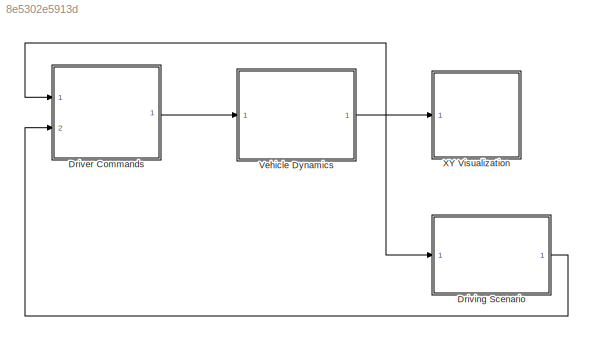
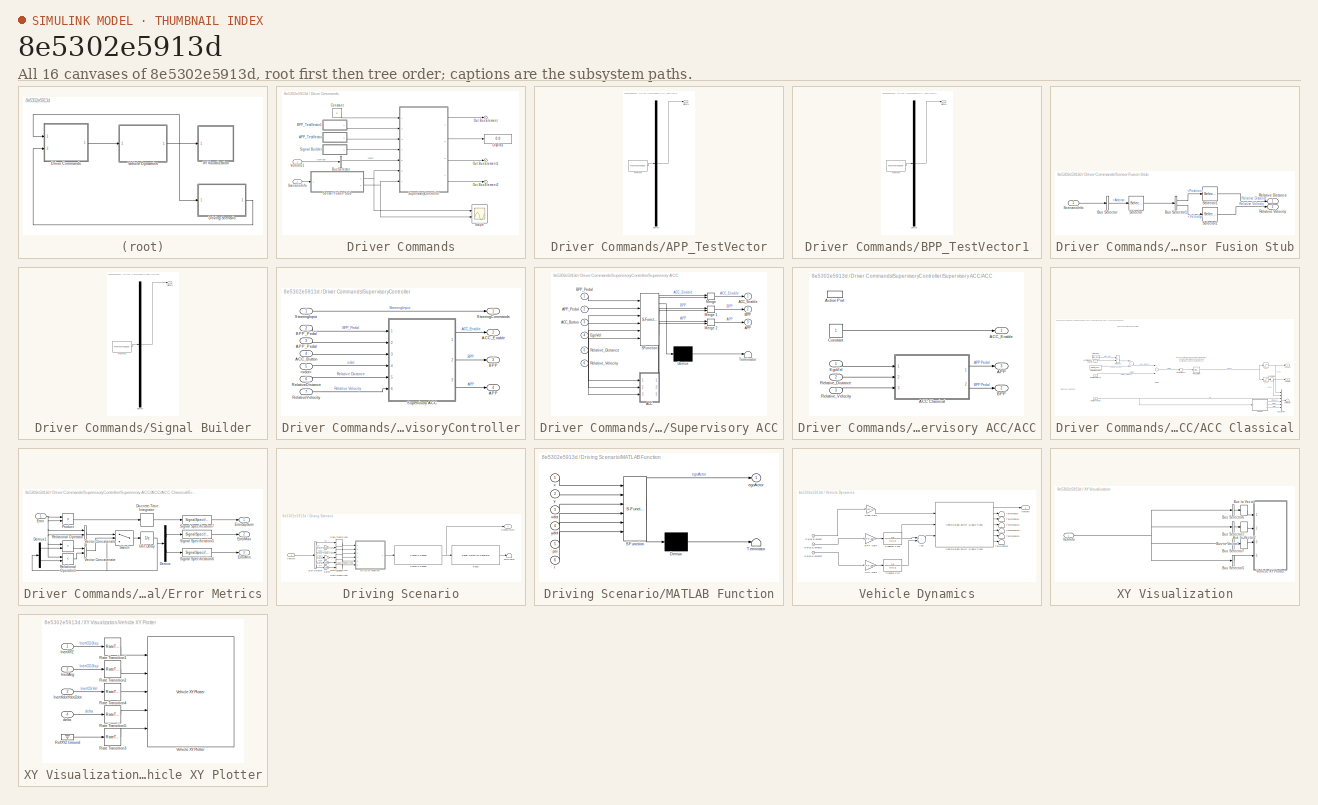
[diagram: thumbnail index - all 16 canvases of the model, root first then tree order]
MODEL slx_8e5302e5913d
KIND model
CONFIG AbsTol = auto
CONFIG EnableMultiTasking = off
CONFIG FixedStep = 0.01
CONFIG InitFcn = initACCParams_pid;
CONFIG MaxStep = auto
CONFIG MinStep = auto
CONFIG PreLoadFcn = Ts1 = -1;\nTs2 = -1;
CONFIG RelTol = 1e-3
CONFIG SampleTimeConstraint = Unconstrained
CONFIG Solver = VariableStepAuto
CONFIG SolverName = VariableStepAuto
CONFIG StartTime = 0.0
CONFIG StopTime = 30
WORKSPACE source: mxarray member
WORKSPACE firstWarning = 1
WORKSPACE originalScenarioChecksum = '3C3E23DDE530CB8BEC76DD6DBB66960A'
BLOCK [SubSystem] Driver Commands
  Ports = [2, 1]
  RequestExecContextInheritance = off
BLOCK [SubSystem] Driver Commands/APP_TestVector
  ClipboardFcn = sigbuilder_block('clipboard');
  CloseFcn = sigbuilder_block('close');
  ContinueFcn = sigbuilder_block('continue');
  CopyFcn = sigbuilder_block('copy');
  DeleteFcn = sigbuilder_block('delete');
  LoadFcn = sigbuilder_block('load');
  MaskHideContents = on
  ModelCloseFcn = sigbuilder_block('modelClose');
  NameChangeFcn = sigbuilder_block('namechange');
  OpenFcn = sigbuilder_block('open',[609 515.25 550.5 237.75 ]);
  PauseFcn = sigbuilder_block('pause');
  Ports = [0, 1]
  PreSaveFcn = sigbuilder_block('preSave');
  RequestExecContextInheritance = off
  StartFcn = sigbuilder_block('start');
  StopFcn = sigbuilder_block('stop');
  Tag = STV Subsys
BLOCK [Demux] Driver Commands/APP_TestVector/Demux
  Outputs = 1
  Ports = [1, 1]
  Tag = STV Demux
BLOCK [FromWorkspace] Driver Commands/APP_TestVector/FromWs
  SampleTime = 0
  Tag = STV FromWs
  VariableName = tuvar
  ZeroCross = on
BLOCK [Outport] Driver Commands/APP_TestVector/Signal 1
  IconDisplay = Port number
  Tag = STV Outport
BLOCK [SubSystem] Driver Commands/BPP_TestVector1
  ClipboardFcn = sigbuilder_block('clipboard');
  CloseFcn = sigbuilder_block('close');
  ContinueFcn = sigbuilder_block('continue');
  CopyFcn = sigbuilder_block('copy');
  DeleteFcn = sigbuilder_block('delete');
  LoadFcn = sigbuilder_block('load');
  MaskHideContents = on
  ModelCloseFcn = sigbuilder_block('modelClose');
  NameChangeFcn = sigbuilder_block('namechange');
  OpenFcn = sigbuilder_block('open',[325.5 304.5 550.5 278.25 ]);
  PauseFcn = sigbuilder_block('pause');
  Ports = [0, 1]
  PreSaveFcn = sigbuilder_block('preSave');
  RequestExecContextInheritance = off
  StartFcn = sigbuilder_block('start');
  StopFcn = sigbuilder_block('stop');
  Tag = STV Subsys
BLOCK [Demux] Driver Commands/BPP_TestVector1/Demux
  Outputs = 1
  Ports = [1, 1]
  Tag = STV Demux
BLOCK [FromWorkspace] Driver Commands/BPP_TestVector1/FromWs
  SampleTime = 0
  Tag = STV FromWs
  VariableName = tuvar
  ZeroCross = on
BLOCK [Outport] Driver Commands/BPP_TestVector1/Signal 1
  IconDisplay = Port number
  Tag = STV Outport
BLOCK [BusSelector] Driver Commands/Bus Selector
  OutputAsBus = off
  OutputSignals = BdyFrm.Cg.Vel.xdot
  Ports = [1, 1]
BLOCK [Constant] Driver Commands/Constant
  SampleTime = 0.01
  Value = 0
BLOCK [Display] Driver Commands/Display
  Decimation = 1
  Ports = [1]
BLOCK [Outport] Driver Commands/Out Bus Element
  IconDisplay = Port number
BLOCK [Outport] Driver Commands/Out Bus Element1
  IconDisplay = Port number
BLOCK [Outport] Driver Commands/Out Bus Element2
  IconDisplay = Port number
BLOCK [Inport] Driver Commands/ScenarioInfo
  IconDisplay = Port number
  Port = 2
BLOCK [Scope] Driver Commands/Scope
  Floating = off
  NumInputPorts = 2
  Ports = [2]
  ScopeSpecificationString = Simulink.scopes.TimeScopeBlockCfg('CurrentConfiguration', extmgr.ConfigurationSet(extmgr.Configuration('Core','General UI',true),extmgr.Configuration('Core','Source UI',true),extmgr.Configuration('Sources','WiredSimulink',true),extmgr.Configuration('Visuals','Time Domain',true,'SerializedDisplays',{struct('MinYLimReal','-7.50301','MaxYLimReal','116.90862','YLabelReal','','MinYLimMag','0.00000','Ma...<+2013ch>
BLOCK [SubSystem] Driver Commands/Sensor Fusion Stub
  Ports = [1, 2]
  RequestExecContextInheritance = off
BLOCK [BusSelector] Driver Commands/Sensor Fusion Stub/Bus Selector
  OutputAsBus = off
  OutputSignals = Actors
  Ports = [1, 1]
BLOCK [BusSelector] Driver Commands/Sensor Fusion Stub/Bus Selector1
  OutputAsBus = off
  OutputSignals = Position,Velocity
  Ports = [1, 2]
BLOCK [Outport] Driver Commands/Sensor Fusion Stub/Relative Distance
  IconDisplay = Port number
BLOCK [Outport] Driver Commands/Sensor Fusion Stub/Relative Velocity
  IconDisplay = Port number
  Port = 2
BLOCK [Inport] Driver Commands/Sensor Fusion Stub/ScenarioInfo
  IconDisplay = Port number
BLOCK [Selector] Driver Commands/Sensor Fusion Stub/Selector
  IndexOptions = Index vector (dialog)
  Indices = 3
  InputPortWidth = 3
  OutputSizes = 1
  Ports = [1, 1]
BLOCK [Selector] Driver Commands/Sensor Fusion Stub/Selector1
  IndexOptions = Index vector (dialog)
  Indices = 1
  InputPortWidth = 3
  OutputSizes = 1
  Ports = [1, 1]
BLOCK [Selector] Driver Commands/Sensor Fusion Stub/Selector2
  IndexOptions = Index vector (dialog)
  Indices = 1
  InputPortWidth = 3
  OutputSizes = 1
  Ports = [1, 1]
BLOCK [SubSystem] Driver Commands/Signal Builder
  ClipboardFcn = sigbuilder_block('clipboard');
  CloseFcn = sigbuilder_block('close');
  ContinueFcn = sigbuilder_block('continue');
  CopyFcn = sigbuilder_block('copy');
  DeleteFcn = sigbuilder_block('delete');
  LoadFcn = sigbuilder_block('load');
  MaskHideContents = on
  ModelCloseFcn = sigbuilder_block('modelClose');
  NameChangeFcn = sigbuilder_block('namechange');
  OpenFcn = sigbuilder_block('open',[401.25 280.5 550.5 278.25 ]);
  PauseFcn = sigbuilder_block('pause');
  Ports = [0, 1]
  PreSaveFcn = sigbuilder_block('preSave');
  RequestExecContextInheritance = off
  StartFcn = sigbuilder_block('start');
  StopFcn = sigbuilder_block('stop');
  Tag = STV Subsys
BLOCK [Demux] Driver Commands/Signal Builder/Demux
  Outputs = 1
  Ports = [1, 1]
  Tag = STV Demux
BLOCK [FromWorkspace] Driver Commands/Signal Builder/FromWs
  SampleTime = 0
  Tag = STV FromWs
  VariableName = tuvar
  ZeroCross = on
BLOCK [Outport] Driver Commands/Signal Builder/Signal 1
  IconDisplay = Port number
  Tag = STV Outport
BLOCK [SubSystem] Driver Commands/SupervisoryController
  Ports = [7, 4]
  RequestExecContextInheritance = off
BLOCK [Inport] Driver Commands/SupervisoryController/<xdot>
  IconDisplay = Port number
  OutDataTypeStr = double
  Port = 5
  PortDimensions = 1
  SampleTime = Ts1
  SamplingMode = Sample based
  SignalType = real
BLOCK [Inport] Driver Commands/SupervisoryController/ACC_Button
  IconDisplay = Port number
  OutDataTypeStr = double
  Port = 4
  PortDimensions = 1
  SampleTime = Ts1
  SamplingMode = Sample based
  SignalType = real
BLOCK [Outport] Driver Commands/SupervisoryController/ACC_Enable
  IconDisplay = Port number
  OutDataTypeStr = double
  Port = 2
  PortDimensions = 1
  SamplingMode = Sample based
  SignalType = real
BLOCK [Outport] Driver Commands/SupervisoryController/APP
  IconDisplay = Port number
  OutDataTypeStr = double
  Port = 4
  PortDimensions = 1
  SamplingMode = Sample based
  SignalType = real
BLOCK [Inport] Driver Commands/SupervisoryController/APP_Pedal
  IconDisplay = Port number
  OutDataTypeStr = double
  Port = 3
  PortDimensions = 1
  SampleTime = Ts1
  SamplingMode = Sample based
  SignalType = real
BLOCK [Outport] Driver Commands/SupervisoryController/BPP
  IconDisplay = Port number
  OutDataTypeStr = double
  Port = 3
  PortDimensions = 1
  SamplingMode = Sample based
  SignalType = real
BLOCK [Inport] Driver Commands/SupervisoryController/BPP_Pedal
  IconDisplay = Port number
  OutDataTypeStr = double
  Port = 2
  PortDimensions = 1
  SampleTime = Ts1
  SamplingMode = Sample based
  SignalType = real
BLOCK [Inport] Driver Commands/SupervisoryController/RelativeDistance
  IconDisplay = Port number
  OutDataTypeStr = double
  Port = 6
  PortDimensions = [1 1]
  SampleTime = Ts2
  SamplingMode = Sample based
  SignalType = real
BLOCK [Inport] Driver Commands/SupervisoryController/RelativeVelocity
  IconDisplay = Port number
  OutDataTypeStr = double
  Port = 7
  PortDimensions = [1 1]
  SampleTime = Ts2
  SamplingMode = Sample based
  SignalType = real
BLOCK [Outport] Driver Commands/SupervisoryController/SteeringCommands
  IconDisplay = Port number
  OutDataTypeStr = double
  PortDimensions = 1
  SamplingMode = Sample based
  SignalType = real
BLOCK [Inport] Driver Commands/SupervisoryController/SteeringInput 
  IconDisplay = Port number
  OutDataTypeStr = double
  PortDimensions = 1
  SampleTime = Ts1
  SamplingMode = Sample based
  SignalType = real
BLOCK [SubSystem] Driver Commands/SupervisoryController/Supervisory ACC
  BlockKeywords = __PRM__SERIALIZED__DATA__:Stateflow Chart,Stateflow Diagram
  ErrorFcn = Stateflow.Translate.translate
  PermitHierarchicalResolution = ExplicitOnly
  Ports = [6, 3]
  RequestExecContextInheritance = off
  SFBlockType = Chart
BLOCK [Demux] Driver Commands/SupervisoryController/Supervisory ACC/ Demux 
  Outputs = 1
  Ports = [1, 1]
BLOCK [Merge] Driver Commands/SupervisoryController/Supervisory ACC/ Merge 
  Ports = [2, 1]
BLOCK [Merge] Driver Commands/SupervisoryController/Supervisory ACC/ Merge 1
  Ports = [2, 1]
BLOCK [Merge] Driver Commands/SupervisoryController/Supervisory ACC/ Merge 2
  Ports = [2, 1]
BLOCK [S-Function] Driver Commands/SupervisoryController/Supervisory ACC/ SFunction 
  EnableBusSupport = on
  FunctionName = sf_sfun
  PortCounts = [6 4]
  Ports = [6, 4]
  SFcnIsStateOwnerBlock = off
  SFunctionDeploymentMode = off
  Tag = Stateflow S-Function 3
BLOCK [Terminator] Driver Commands/SupervisoryController/Supervisory ACC/ Terminator 
BLOCK [SubSystem] Driver Commands/SupervisoryController/Supervisory ACC/ACC
  Ports = [3, 3, 0, 0, 0, 0, 0, 1]
  PreDeleteFcn = Stateflow.SLINSF.SimulinkMan.removePreDeleteFcn
  RequestExecContextInheritance = off
  UndoDeleteFcn = Stateflow.SLINSF.SimulinkMan.restorePreDeleteFcn
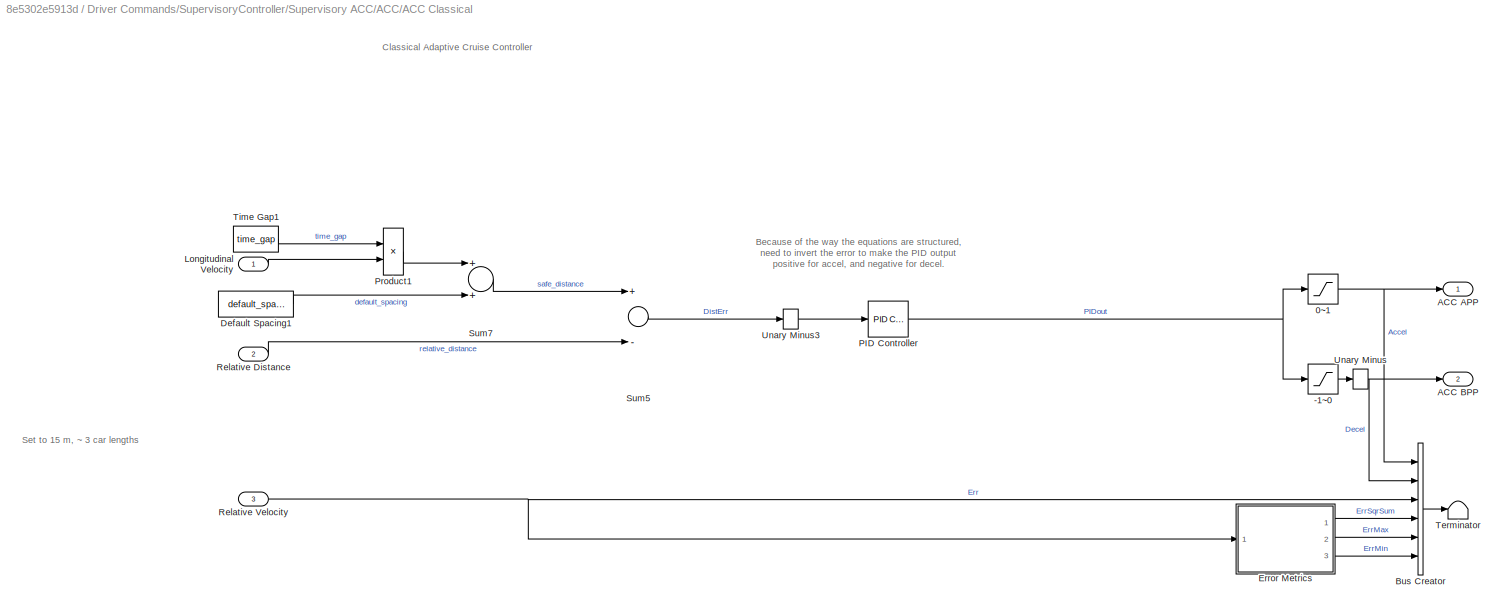
BLOCK [SubSystem] Driver Commands/SupervisoryController/Supervisory ACC/ACC/ACC Classical
  Ports = [3, 2]
  RTWFileNameOpts = Use function name
  RTWSystemCode = Reusable function
  RequestExecContextInheritance = off
  VariantControl = controller_type == 1
BLOCK [Saturate] Driver Commands/SupervisoryController/Supervisory ACC/ACC/ACC Classical/-1~0
  InputPortMap = u0
  LowerLimit = -1
  Ports = [1, 1]
  UpperLimit = 0
  ZeroCross = off
BLOCK [Saturate] Driver Commands/SupervisoryController/Supervisory ACC/ACC/ACC Classical/0~1
  InputPortMap = u0
  LowerLimit = 0
  Ports = [1, 1]
  UpperLimit = 1
  ZeroCross = off
BLOCK [Outport] Driver Commands/SupervisoryController/Supervisory ACC/ACC/ACC Classical/ACC APP
  IconDisplay = Port number
  InitialOutput = 0
  Unit = one
  VectorParamsAs1DForOutWhenUnconnected = off
BLOCK [Outport] Driver Commands/SupervisoryController/Supervisory ACC/ACC/ACC Classical/ACC BPP
  IconDisplay = Port number
  InitialOutput = 0
  Port = 2
  Unit = one
  VectorParamsAs1DForOutWhenUnconnected = off
BLOCK [BusCreator] Driver Commands/SupervisoryController/Supervisory ACC/ACC/ACC Classical/Bus Creator
  DisplayOption = bar
  InheritFromInputs = on
  Inputs = 6
  Ports = [6, 1]
BLOCK [Constant] Driver Commands/SupervisoryController/Supervisory ACC/ACC/ACC Classical/Default Spacing1
  SampleTime = -1
  Value = default_spacing
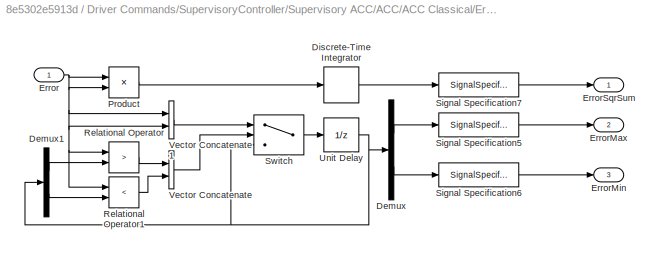
BLOCK [SubSystem] Driver Commands/SupervisoryController/Supervisory ACC/ACC/ACC Classical/Error Metrics
  Ports = [1, 3]
  RequestExecContextInheritance = off
BLOCK [Demux] Driver Commands/SupervisoryController/Supervisory ACC/ACC/ACC Classical/Error Metrics/Demux
  DisplayOption = bar
  Outputs = 2
  Ports = [1, 2]
BLOCK [Demux] Driver Commands/SupervisoryController/Supervisory ACC/ACC/ACC Classical/Error Metrics/Demux1
  DisplayOption = bar
  Outputs = 2
  Ports = [1, 2]
BLOCK [DiscreteIntegrator] Driver Commands/SupervisoryController/Supervisory ACC/ACC/ACC Classical/Error Metrics/Discrete-Time Integrator
  ICPrevOutput = DiscIntNeverNeededParam
  ICPrevScaledInput = DiscIntNeverNeededParam
  InitialConditionSetting = Auto
  Ports = [1, 1]
  SampleTime = -1
BLOCK [Inport] Driver Commands/SupervisoryController/Supervisory ACC/ACC/ACC Classical/Error Metrics/Error
  IconDisplay = Port number
BLOCK [Outport] Driver Commands/SupervisoryController/Supervisory ACC/ACC/ACC Classical/Error Metrics/ErrorMax
  IconDisplay = Port number
  Port = 2
  VectorParamsAs1DForOutWhenUnconnected = off
BLOCK [Outport] Driver Commands/SupervisoryController/Supervisory ACC/ACC/ACC Classical/Error Metrics/ErrorMin
  IconDisplay = Port number
  Port = 3
  VectorParamsAs1DForOutWhenUnconnected = off
BLOCK [Outport] Driver Commands/SupervisoryController/Supervisory ACC/ACC/ACC Classical/Error Metrics/ErrorSqrSum
  IconDisplay = Port number
  VectorParamsAs1DForOutWhenUnconnected = off
BLOCK [Product] Driver Commands/SupervisoryController/Supervisory ACC/ACC/ACC Classical/Error Metrics/Product
  InputSameDT = off
  OutDataTypeStr = Inherit: Inherit via internal rule
  Ports = [2, 1]
  RndMeth = Floor
  SaturateOnIntegerOverflow = off
BLOCK [RelationalOperator] Driver Commands/SupervisoryController/Supervisory ACC/ACC/ACC Classical/Error Metrics/Relational Operator
  InputSameDT = off
  Operator = >
  OutDataTypeStr = boolean
  Ports = [2, 1]
  RndMeth = Simplest
  ZeroCross = off
BLOCK [RelationalOperator] Driver Commands/SupervisoryController/Supervisory ACC/ACC/ACC Classical/Error Metrics/Relational Operator1
  InputSameDT = off
  Operator = <
  OutDataTypeStr = boolean
  Ports = [2, 1]
  RndMeth = Simplest
  ZeroCross = off
BLOCK [SignalSpecification] Driver Commands/SupervisoryController/Supervisory ACC/ACC/ACC Classical/Error Metrics/Signal Specification5
  Unit = m/s
BLOCK [SignalSpecification] Driver Commands/SupervisoryController/Supervisory ACC/ACC/ACC Classical/Error Metrics/Signal Specification6
  Unit = m/s
BLOCK [SignalSpecification] Driver Commands/SupervisoryController/Supervisory ACC/ACC/ACC Classical/Error Metrics/Signal Specification7
  Unit = m^2/s^2
BLOCK [Switch] Driver Commands/SupervisoryController/Supervisory ACC/ACC/ACC Classical/Error Metrics/Switch
  Criteria = u2 > Threshold
  InputSameDT = off
  SaturateOnIntegerOverflow = off
BLOCK [UnitDelay] Driver Commands/SupervisoryController/Supervisory ACC/ACC/ACC Classical/Error Metrics/Unit Delay
  HasFrameUpgradeWarning = on
  InitialCondition = [0,0]
  SampleTime = -1
BLOCK [Concatenate] Driver Commands/SupervisoryController/Supervisory ACC/ACC/ACC Classical/Error Metrics/Vector Concatenate
  Ports = [2, 1]
BLOCK [Concatenate] Driver Commands/SupervisoryController/Supervisory ACC/ACC/ACC Classical/Error Metrics/Vector Concatenate1
  Ports = [2, 1]
BLOCK [Inport] Driver Commands/SupervisoryController/Supervisory ACC/ACC/ACC Classical/Longitudinal Velocity
  IconDisplay = Port number
BLOCK [Reference] Driver Commands/SupervisoryController/Supervisory ACC/ACC/ACC Classical/PID Controller  REF=simulink/Continuous/PID Controller
  Ports = [1, 1]
  SourceBlock = simulink/Continuous/PID Controller
  SourceProductBaseCode = SL
  SourceProductName = Simulink
  SourceType = PID 1dof
BLOCK [Product] Driver Commands/SupervisoryController/Supervisory ACC/ACC/ACC Classical/Product1
  InputSameDT = off
  OutDataTypeStr = Inherit: Inherit via internal rule
  Ports = [2, 1]
  RndMeth = Floor
  SaturateOnIntegerOverflow = off
BLOCK [Inport] Driver Commands/SupervisoryController/Supervisory ACC/ACC/ACC Classical/Relative Distance
  IconDisplay = Port number
  Port = 2
BLOCK [Inport] Driver Commands/SupervisoryController/Supervisory ACC/ACC/ACC Classical/Relative Velocity
  IconDisplay = Port number
  Port = 3
BLOCK [Sum] Driver Commands/SupervisoryController/Supervisory ACC/ACC/ACC Classical/Sum5
  InputSameDT = off
  Inputs = +-
  OutDataTypeStr = Inherit: Inherit via internal rule
  Ports = [2, 1]
  SaturateOnIntegerOverflow = off
BLOCK [Sum] Driver Commands/SupervisoryController/Supervisory ACC/ACC/ACC Classical/Sum7
  InputSameDT = off
  OutDataTypeStr = Inherit: Inherit via internal rule
  Ports = [2, 1]
  SaturateOnIntegerOverflow = off
BLOCK [Terminator] Driver Commands/SupervisoryController/Supervisory ACC/ACC/ACC Classical/Terminator
BLOCK [Constant] Driver Commands/SupervisoryController/Supervisory ACC/ACC/ACC Classical/Time Gap1
  SampleTime = -1
  Value = time_gap
BLOCK [UnaryMinus] Driver Commands/SupervisoryController/Supervisory ACC/ACC/ACC Classical/Unary Minus
BLOCK [UnaryMinus] Driver Commands/SupervisoryController/Supervisory ACC/ACC/ACC Classical/Unary Minus3
BLOCK [Outport] Driver Commands/SupervisoryController/Supervisory ACC/ACC/ACC_Enable
  IconDisplay = Port number
BLOCK [Outport] Driver Commands/SupervisoryController/Supervisory ACC/ACC/APP
  IconDisplay = Port number
  Port = 3
BLOCK [ActionPort] Driver Commands/SupervisoryController/Supervisory ACC/ACC/Action Port
  CopyFcn = Stateflow.SLINSF.SimulinkMan.removeBlockPreDeleteFcn
  PreDeleteFcn = Stateflow.SLINSF.SimulinkMan.unsafePredeleteFcn
BLOCK [Outport] Driver Commands/SupervisoryController/Supervisory ACC/ACC/BPP
  IconDisplay = Port number
  Port = 2
BLOCK [Constant] Driver Commands/SupervisoryController/Supervisory ACC/ACC/Constant
  SampleTime = -1
BLOCK [Inport] Driver Commands/SupervisoryController/Supervisory ACC/ACC/EgoVel
  IconDisplay = Port number
BLOCK [Inport] Driver Commands/SupervisoryController/Supervisory ACC/ACC/Relative_Distance
  IconDisplay = Port number
  Port = 2
BLOCK [Inport] Driver Commands/SupervisoryController/Supervisory ACC/ACC/Relative_Velocity
  IconDisplay = Port number
  Port = 3
BLOCK [Inport] Driver Commands/SupervisoryController/Supervisory ACC/ACC_Button
  IconDisplay = Port number
  Port = 3
BLOCK [Outport] Driver Commands/SupervisoryController/Supervisory ACC/ACC_Enable
  IconDisplay = Port number
BLOCK [Outport] Driver Commands/SupervisoryController/Supervisory ACC/APP
  IconDisplay = Port number
  Port = 3
BLOCK [Inport] Driver Commands/SupervisoryController/Supervisory ACC/APP_Pedal
  IconDisplay = Port number
  Port = 2
BLOCK [Outport] Driver Commands/SupervisoryController/Supervisory ACC/BPP
  IconDisplay = Port number
  Port = 2
BLOCK [Inport] Driver Commands/SupervisoryController/Supervisory ACC/BPP_Pedal
  IconDisplay = Port number
BLOCK [Inport] Driver Commands/SupervisoryController/Supervisory ACC/EgoVel
  IconDisplay = Port number
  Port = 4
BLOCK [Inport] Driver Commands/SupervisoryController/Supervisory ACC/Relative_Distance
  IconDisplay = Port number
  Port = 5
BLOCK [Inport] Driver Commands/SupervisoryController/Supervisory ACC/Relative_Velocity
  IconDisplay = Port number
  Port = 6
BLOCK [Inport] Driver Commands/VehInfo1
  IconDisplay = Port number
BLOCK [SubSystem] Driving Scenario
  Ports = [1, 1]
  RequestExecContextInheritance = off
BLOCK [BusSelector] Driving Scenario/Bus Selector
  OutputAsBus = off
  OutputSignals = InertFrm.Cg.Disp.X,InertFrm.Cg.Disp.Y,InertFrm.Cg.Vel.Xdot,InertFrm.Cg.Vel.Ydot,InertFrm.Cg.Ang.psi,BdyFrm.Cg.AngVel.r
  Ports = [1, 6]
BLOCK [Gain] Driving Scenario/Gain
  Gain = -1
  OutDataTypeStr = Inherit: Inherit via internal rule
  ParamDataTypeStr = Inherit: Inherit via internal rule
  SaturateOnIntegerOverflow = off
BLOCK [Gain] Driving Scenario/Gain1
  Gain = -1
  OutDataTypeStr = Inherit: Inherit via internal rule
  ParamDataTypeStr = Inherit: Inherit via internal rule
  SaturateOnIntegerOverflow = off
BLOCK [Gain] Driving Scenario/Gain2
  Gain = -180/pi
  OutDataTypeStr = Inherit: Inherit via internal rule
  ParamDataTypeStr = Inherit: Inherit via internal rule
  SaturateOnIntegerOverflow = off
BLOCK [Gain] Driving Scenario/Gain3
  Gain = -180/pi
  OutDataTypeStr = Inherit: Inherit via internal rule
  ParamDataTypeStr = Inherit: Inherit via internal rule
  SaturateOnIntegerOverflow = off
BLOCK [SubSystem] Driving Scenario/MATLAB Function
  ErrorFcn = Stateflow.Translate.translate
  PermitHierarchicalResolution = ExplicitOnly
  Ports = [6, 1]
  RequestExecContextInheritance = off
  SFBlockType = MATLAB Function
  TreatAsAtomicUnit = on
BLOCK [Demux] Driving Scenario/MATLAB Function/ Demux 
  Outputs = 1
  Ports = [1, 1]
BLOCK [S-Function] Driving Scenario/MATLAB Function/ SFunction 
  EnableBusSupport = on
  FunctionName = sf_sfun
  PortCounts = [6 2]
  Ports = [6, 2]
  SFcnIsStateOwnerBlock = off
  SFunctionDeploymentMode = off
  Tag = Stateflow S-Function 2
BLOCK [Terminator] Driving Scenario/MATLAB Function/ Terminator 
BLOCK [Outport] Driving Scenario/MATLAB Function/egoActor
  IconDisplay = Port number
BLOCK [Inport] Driving Scenario/MATLAB Function/psi
  IconDisplay = Port number
  Port = 5
BLOCK [Inport] Driving Scenario/MATLAB Function/r
  IconDisplay = Port number
  Port = 6
BLOCK [Inport] Driving Scenario/MATLAB Function/x
  IconDisplay = Port number
BLOCK [Inport] Driving Scenario/MATLAB Function/xdot
  IconDisplay = Port number
  Port = 3
BLOCK [Inport] Driving Scenario/MATLAB Function/y
  IconDisplay = Port number
  Port = 2
BLOCK [Inport] Driving Scenario/MATLAB Function/ydot
  IconDisplay = Port number
  Port = 4
BLOCK [Reference] Driving Scenario/Radar  REF=drivingscenarioandsensors/Radar Detection Generator
  Ports = [1, 1]
  SourceBlock = drivingscenarioandsensors/Radar Detection Generator
  SourceProductBaseCode = DR
  SourceProductName = Automated Driving Toolbox
  SourceType = radarDetectionGenerator
BLOCK [RateTransition] Driving Scenario/Rate Transition1
  OutPortSampleTime = 0.1
BLOCK [RateTransition] Driving Scenario/Rate Transition2
  OutPortSampleTime = 0.1
BLOCK [RateTransition] Driving Scenario/Rate Transition3
  OutPortSampleTime = 0.1
BLOCK [RateTransition] Driving Scenario/Rate Transition4
  OutPortSampleTime = 0.1
BLOCK [RateTransition] Driving Scenario/Rate Transition5
  OutPortSampleTime = 0.1
BLOCK [RateTransition] Driving Scenario/Rate Transition6
  OutPortSampleTime = 0.1
BLOCK [Reference] Driving Scenario/Scenario Reader  REF=drivingscenarioandsensors/Scenario Reader
  Ports = [1, 1]
  SourceBlock = drivingscenarioandsensors/Scenario Reader
  SourceProductBaseCode = DR
  SourceProductName = Automated Driving Toolbox
  SourceType = driving.scenario.internal.ScenarioReader
BLOCK [Outport] Driving Scenario/ScenarioInfo
  IconDisplay = Port number
BLOCK [Terminator] Driving Scenario/Terminator
BLOCK [Inport] Driving Scenario/VehInfo
  IconDisplay = Port number
BLOCK [SubSystem] Vehicle Dynamics
  Ports = [1, 1]
  RequestExecContextInheritance = off
BLOCK [Gain] Vehicle Dynamics/APP Gain
  Gain = APP_gain
  OutDataTypeStr = Inherit: Inherit via internal rule
  ParamDataTypeStr = Inherit: Inherit via internal rule
  SaturateOnIntegerOverflow = off
BLOCK [Sum] Vehicle Dynamics/Add
  InputSameDT = off
  OutDataTypeStr = Inherit: Inherit via internal rule
  Ports = [2, 1]
  SaturateOnIntegerOverflow = off
BLOCK [Gain] Vehicle Dynamics/BPP Gain
  Gain = BPP_gain
  OutDataTypeStr = Inherit: Inherit via internal rule
  ParamDataTypeStr = Inherit: Inherit via internal rule
  SaturateOnIntegerOverflow = off
BLOCK [Inport] Vehicle Dynamics/In Bus Element
  IconDisplay = Port number
BLOCK [Inport] Vehicle Dynamics/In Bus Element1
  IconDisplay = Port number
BLOCK [Inport] Vehicle Dynamics/In Bus Element2
  IconDisplay = Port number
BLOCK [Gain] Vehicle Dynamics/Steer Gain
  Gain = steer_gain
  OutDataTypeStr = Inherit: Inherit via internal rule
  ParamDataTypeStr = Inherit: Inherit via internal rule
  SaturateOnIntegerOverflow = off
BLOCK [Terminator] Vehicle Dynamics/Terminator
BLOCK [Terminator] Vehicle Dynamics/Terminator1
BLOCK [Terminator] Vehicle Dynamics/Terminator2
BLOCK [Terminator] Vehicle Dynamics/Terminator3
BLOCK [Terminator] Vehicle Dynamics/Terminator4
BLOCK [Terminator] Vehicle Dynamics/Terminator5
BLOCK [TransferFcn] Vehicle Dynamics/Transfer Fcn
  Denominator = [0.5 1]
BLOCK [TransferFcn] Vehicle Dynamics/Transfer Fcn1
  Denominator = [0.5 1]
BLOCK [Outport] Vehicle Dynamics/VehInfo
  IconDisplay = Port number
BLOCK [Reference] Vehicle Dynamics/Vehicle Body 3DOF Single Track  REF=autolibshared/Vehicle Body 3DOF Single Track
  Ports = [3, 7]
  SourceBlock = autolibshared/Vehicle Body 3DOF Single Track
  SourceProductBaseCode = PW
  SourceProductName = Powertrain Blockset
  SourceType = Vehicle Body 3DOF Lateral
BLOCK [SubSystem] XY Visualization
  Ports = [1]
  RequestExecContextInheritance = off
BLOCK [BusSelector] XY Visualization/Bus Selector1
  OutputAsBus = on
  OutputSignals = InertFrm.Cg.Ang.phi,InertFrm.Cg.Ang.theta,InertFrm.Cg.Ang.psi
  Ports = [1, 1]
BLOCK [BusSelector] XY Visualization/Bus Selector5
  OutputAsBus = on
  OutputSignals = BdyFrm.FrntAxl.Steer.WhlAngFL,BdyFrm.FrntAxl.Steer.WhlAngFR,BdyFrm.RearAxl.Steer.WhlAngRL,BdyFrm.RearAxl.Steer.WhlAngRR
  Ports = [1, 1]
BLOCK [BusSelector] XY Visualization/Bus Selector6
  OutputAsBus = on
  OutputSignals = InertFrm.Geom.Disp.X,InertFrm.Geom.Disp.Y,InertFrm.Geom.Disp.Z
  Ports = [1, 1]
BLOCK [BusSelector] XY Visualization/Bus Selector7
  OutputAsBus = on
  OutputSignals = InertFrm.Geom.Vel.Xdot,InertFrm.Geom.Vel.Ydot,InertFrm.Geom.Vel.Zdot
  Ports = [1, 1]
BLOCK [BusToVector] XY Visualization/Bus to Vector
BLOCK [BusToVector] XY Visualization/Bus to Vector1
BLOCK [BusToVector] XY Visualization/Bus to Vector2
BLOCK [Inport] XY Visualization/VehInfo
  IconDisplay = Port number
BLOCK [SubSystem] XY Visualization/Vehicle XY Plotter
  Ports = [4]
  RequestExecContextInheritance = off
BLOCK [Inport] XY Visualization/Vehicle XY Plotter/InertAng
  IconDisplay = Port number
  Port = 2
BLOCK [Inport] XY Visualization/Vehicle XY Plotter/InertXYZ
  IconDisplay = Port number
BLOCK [Inport] XY Visualization/Vehicle XY Plotter/InertXdotYdotZdot
  IconDisplay = Port number
  Port = 3
BLOCK [RateTransition] XY Visualization/Vehicle XY Plotter/Rate Transition1
  Deterministic = off
  OutPortSampleTime = pltDT
BLOCK [RateTransition] XY Visualization/Vehicle XY Plotter/Rate Transition2
  Deterministic = off
  OutPortSampleTime = pltDT
BLOCK [RateTransition] XY Visualization/Vehicle XY Plotter/Rate Transition3
  Deterministic = off
  OutPortSampleTime = pltDT
BLOCK [RateTransition] XY Visualization/Vehicle XY Plotter/Rate Transition4
  Deterministic = off
  OutPortSampleTime = pltDT
BLOCK [RateTransition] XY Visualization/Vehicle XY Plotter/Rate Transition5
  Deterministic = off
  OutPortSampleTime = pltDT
BLOCK [Ground] XY Visualization/Vehicle XY Plotter/RefXYZ Ground
BLOCK [Reference] XY Visualization/Vehicle XY Plotter/Vehicle XY Plotter  REF=vehdynlibviscommon/Vehicle XY Plotter
  Ports = [5]
  SourceBlock = vehdynlibviscommon/Vehicle XY Plotter
  SourceProductBaseCode = VE
  SourceProductName = Vehicle Dynamics Blockset
  SourceType = Vehicle XY Plotter
BLOCK [Inport] XY Visualization/Vehicle XY Plotter/delta
  IconDisplay = Port number
  Port = 4
ANNOTATION Driver Commands/SupervisoryController/Supervisory ACC/ACC/ACC Classical: Classical Adaptive Cruise Controller
ANNOTATION Driver Commands/SupervisoryController/Supervisory ACC/ACC/ACC Classical: Because of the way the equations are structured, need to invert the error to make the PID output positive for accel, and negative for decel.
ANNOTATION Driver Commands/SupervisoryController/Supervisory ACC/ACC/ACC Classical: Set to 15 m, ~ 3 car lengths
LINE Driver Commands/APP_TestVector:1 -> Driver Commands/SupervisoryController:3
LINE Driver Commands/BPP_TestVector1:1 -> Driver Commands/SupervisoryController:2
LINE Driver Commands/Bus Selector:1 -> Driver Commands/SupervisoryController:5
LINE Driver Commands/Constant:1 -> Driver Commands/SupervisoryController:1
LINE Driver Commands/ScenarioInfo:1 -> Driver Commands/Sensor Fusion Stub:1
LINE Driver Commands/Sensor Fusion Stub/Bus Selector1:1 -> Driver Commands/Sensor Fusion Stub/Selector1:1
LINE Driver Commands/Sensor Fusion Stub/Bus Selector1:2 -> Driver Commands/Sensor Fusion Stub/Selector2:1
LINE Driver Commands/Sensor Fusion Stub/Bus Selector:1 -> Driver Commands/Sensor Fusion Stub/Selector:1
LINE Driver Commands/Sensor Fusion Stub/ScenarioInfo:1 -> Driver Commands/Sensor Fusion Stub/Bus Selector:1
LINE Driver Commands/Sensor Fusion Stub/Selector1:1 -> Driver Commands/Sensor Fusion Stub/Relative Distance:1
LINE Driver Commands/Sensor Fusion Stub/Selector2:1 -> Driver Commands/Sensor Fusion Stub/Relative Velocity:1
LINE Driver Commands/Sensor Fusion Stub/Selector:1 -> Driver Commands/Sensor Fusion Stub/Bus Selector1:1
NET Driver Commands/Sensor Fusion Stub:1 -> Driver Commands/Scope:1, Driver Commands/SupervisoryController:6
NET Driver Commands/Sensor Fusion Stub:2 -> Driver Commands/Scope:2, Driver Commands/SupervisoryController:7
LINE Driver Commands/Signal Builder:1 -> Driver Commands/SupervisoryController:4
LINE Driver Commands/SupervisoryController/<xdot>:1 -> Driver Commands/SupervisoryController/Supervisory ACC:4
LINE Driver Commands/SupervisoryController/ACC_Button:1 -> Driver Commands/SupervisoryController/Supervisory ACC:3
LINE Driver Commands/SupervisoryController/APP_Pedal:1 -> Driver Commands/SupervisoryController/Supervisory ACC:2
LINE Driver Commands/SupervisoryController/BPP_Pedal:1 -> Driver Commands/SupervisoryController/Supervisory ACC:1
LINE Driver Commands/SupervisoryController/RelativeDistance:1 -> Driver Commands/SupervisoryController/Supervisory ACC:5
LINE Driver Commands/SupervisoryController/RelativeVelocity:1 -> Driver Commands/SupervisoryController/Supervisory ACC:6
LINE Driver Commands/SupervisoryController/SteeringInput :1 -> Driver Commands/SupervisoryController/SteeringCommands:1
LINE Driver Commands/SupervisoryController/Supervisory ACC:1 -> Driver Commands/SupervisoryController/ACC_Enable:1
LINE Driver Commands/SupervisoryController/Supervisory ACC:2 -> Driver Commands/SupervisoryController/BPP:1
LINE Driver Commands/SupervisoryController/Supervisory ACC:3 -> Driver Commands/SupervisoryController/APP:1
LINE Driver Commands/SupervisoryController:1 -> Driver Commands/Out Bus Element:1
LINE Driver Commands/SupervisoryController:2 -> Driver Commands/Display:1
LINE Driver Commands/SupervisoryController:3 -> Driver Commands/Out Bus Element1:1
LINE Driver Commands/SupervisoryController:4 -> Driver Commands/Out Bus Element2:1
LINE Driver Commands/VehInfo1:1 -> Driver Commands/Bus Selector:1
LINE Driver Commands:1 -> Vehicle Dynamics:1
LINE Driving Scenario/Bus Selector:1 -> Driving Scenario/Rate Transition6:1
LINE Driving Scenario/Bus Selector:2 -> Driving Scenario/Gain:1
LINE Driving Scenario/Bus Selector:3 -> Driving Scenario/Rate Transition2:1
LINE Driving Scenario/Bus Selector:4 -> Driving Scenario/Gain1:1
LINE Driving Scenario/Bus Selector:5 -> Driving Scenario/Gain2:1
LINE Driving Scenario/Bus Selector:6 -> Driving Scenario/Gain3:1
LINE Driving Scenario/Gain1:1 -> Driving Scenario/Rate Transition3:1
LINE Driving Scenario/Gain2:1 -> Driving Scenario/Rate Transition4:1
LINE Driving Scenario/Gain3:1 -> Driving Scenario/Rate Transition5:1
LINE Driving Scenario/Gain:1 -> Driving Scenario/Rate Transition1:1
LINE Driving Scenario/MATLAB Function:1 -> Driving Scenario/Scenario Reader:1
LINE Driving Scenario/Radar:1 -> Driving Scenario/Terminator:1
LINE Driving Scenario/Rate Transition1:1 -> Driving Scenario/MATLAB Function:2
LINE Driving Scenario/Rate Transition2:1 -> Driving Scenario/MATLAB Function:3
LINE Driving Scenario/Rate Transition3:1 -> Driving Scenario/MATLAB Function:4
LINE Driving Scenario/Rate Transition4:1 -> Driving Scenario/MATLAB Function:5
LINE Driving Scenario/Rate Transition5:1 -> Driving Scenario/MATLAB Function:6
LINE Driving Scenario/Rate Transition6:1 -> Driving Scenario/MATLAB Function:1
NET Driving Scenario/Scenario Reader:1 -> Driving Scenario/Radar:1, Driving Scenario/ScenarioInfo:1
LINE Driving Scenario/VehInfo:1 -> Driving Scenario/Bus Selector:1
LINE Driving Scenario:1 -> Driver Commands:2
LINE Vehicle Dynamics/APP Gain:1 -> Vehicle Dynamics/Transfer Fcn:1
LINE Vehicle Dynamics/Add:1 -> Vehicle Dynamics/Vehicle Body 3DOF Single Track:3
LINE Vehicle Dynamics/BPP Gain:1 -> Vehicle Dynamics/Transfer Fcn1:1
LINE Vehicle Dynamics/In Bus Element1:1 -> Vehicle Dynamics/BPP Gain:1
LINE Vehicle Dynamics/In Bus Element2:1 -> Vehicle Dynamics/APP Gain:1
LINE Vehicle Dynamics/In Bus Element:1 -> Vehicle Dynamics/Steer Gain:1
LINE Vehicle Dynamics/Steer Gain:1 -> Vehicle Dynamics/Vehicle Body 3DOF Single Track:1
NET Vehicle Dynamics/Transfer Fcn1:1 -> Vehicle Dynamics/Add:1, Vehicle Dynamics/Vehicle Body 3DOF Single Track:2
LINE Vehicle Dynamics/Transfer Fcn:1 -> Vehicle Dynamics/Add:2
LINE Vehicle Dynamics/Vehicle Body 3DOF Single Track:1 -> Vehicle Dynamics/VehInfo:1
LINE Vehicle Dynamics/Vehicle Body 3DOF Single Track:2 -> Vehicle Dynamics/Terminator:1
LINE Vehicle Dynamics/Vehicle Body 3DOF Single Track:3 -> Vehicle Dynamics/Terminator1:1
LINE Vehicle Dynamics/Vehicle Body 3DOF Single Track:4 -> Vehicle Dynamics/Terminator2:1
LINE Vehicle Dynamics/Vehicle Body 3DOF Single Track:5 -> Vehicle Dynamics/Terminator3:1
LINE Vehicle Dynamics/Vehicle Body 3DOF Single Track:6 -> Vehicle Dynamics/Terminator4:1
LINE Vehicle Dynamics/Vehicle Body 3DOF Single Track:7 -> Vehicle Dynamics/Terminator5:1
NET Vehicle Dynamics:1 -> Driver Commands:1, Driving Scenario:1, XY Visualization:1
LINE XY Visualization/Bus Selector1:1 -> XY Visualization/Bus to Vector2:1
LINE XY Visualization/Bus Selector5:1 -> XY Visualization/Vehicle XY Plotter:4
LINE XY Visualization/Bus Selector6:1 -> XY Visualization/Bus to Vector:1
LINE XY Visualization/Bus Selector7:1 -> XY Visualization/Bus to Vector1:1
LINE XY Visualization/Bus to Vector1:1 -> XY Visualization/Vehicle XY Plotter:3
LINE XY Visualization/Bus to Vector2:1 -> XY Visualization/Vehicle XY Plotter:2
LINE XY Visualization/Bus to Vector:1 -> XY Visualization/Vehicle XY Plotter:1
NET XY Visualization/VehInfo:1 -> XY Visualization/Bus Selector1:1, XY Visualization/Bus Selector5:1, XY Visualization/Bus Selector6:1, XY Visualization/Bus Selector7:1
LINE XY Visualization/Vehicle XY Plotter/InertAng:1 -> XY Visualization/Vehicle XY Plotter/Rate Transition2:1
LINE XY Visualization/Vehicle XY Plotter/InertXYZ:1 -> XY Visualization/Vehicle XY Plotter/Rate Transition1:1
LINE XY Visualization/Vehicle XY Plotter/InertXdotYdotZdot:1 -> XY Visualization/Vehicle XY Plotter/Rate Transition4:1
LINE XY Visualization/Vehicle XY Plotter/Rate Transition1:1 -> XY Visualization/Vehicle XY Plotter/Vehicle XY Plotter:1
LINE XY Visualization/Vehicle XY Plotter/Rate Transition2:1 -> XY Visualization/Vehicle XY Plotter/Vehicle XY Plotter:2
LINE XY Visualization/Vehicle XY Plotter/Rate Transition3:1 -> XY Visualization/Vehicle XY Plotter/Vehicle XY Plotter:5
LINE XY Visualization/Vehicle XY Plotter/Rate Transition4:1 -> XY Visualization/Vehicle XY Plotter/Vehicle XY Plotter:3
LINE XY Visualization/Vehicle XY Plotter/Rate Transition5:1 -> XY Visualization/Vehicle XY Plotter/Vehicle XY Plotter:4
LINE XY Visualization/Vehicle XY Plotter/RefXYZ Ground:1 -> XY Visualization/Vehicle XY Plotter/Rate Transition3:1
LINE XY Visualization/Vehicle XY Plotter/delta:1 -> XY Visualization/Vehicle XY Plotter/Rate Transition5:1
note: NET lines group one-source signal fan-out (src -> all destinations, sorted); 1:1 wires keep LINE
CHART Driving Scenario/MATLAB Function states=1 transitions=1
  STATE_LABEL 'eML_blk_kernel()'
  STATE_LABEL "SCRIPT:\nfunction egoActor = packActor(x,y,xdot,ydot,psi,r)\n\negoActor = struct(...\n    'ActorID',1,...\n    'Position', [x y 0], ...\n    'Velocity', [xdot ydot 0], ...\n    'Roll', 0, ...\n    'Pitch', 0, ...\n    'Yaw', psi, ...\n    'AngularVelocity', [0 0 r]);\n"
CHART Driver Commands/SupervisoryController/Supervisory ACC states=4 transitions=6
  STATE_LABEL 'WaitOff'
  STATE_LABEL 'Normal\nduring:\nAPP = APP_Pedal;\nBPP = BPP_Pedal;\nACC_Enable = 0;'
  STATE_LABEL 'ACC'
  STATE_LABEL 'WaitOn'
